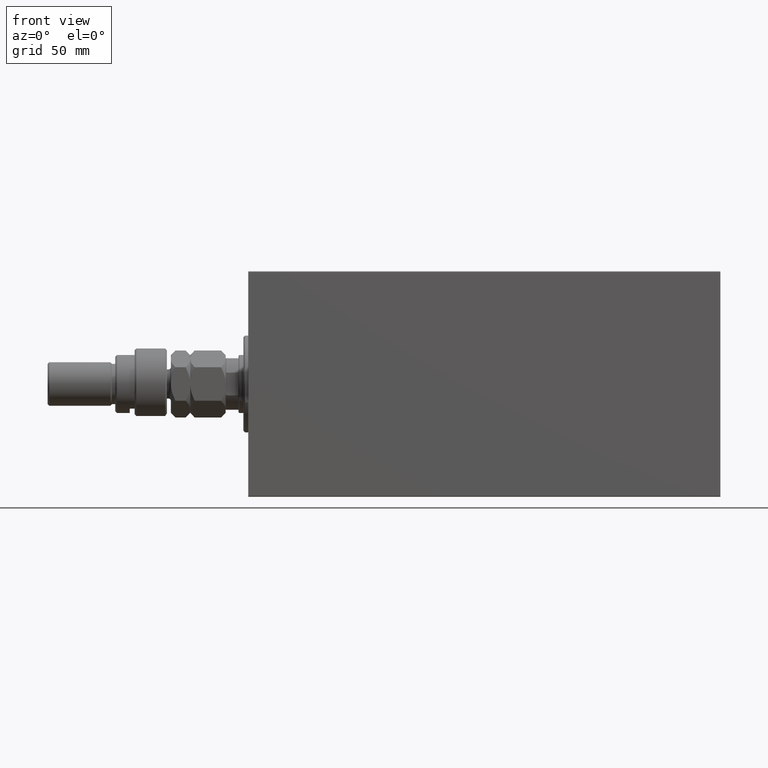
[diagram: clean part render]
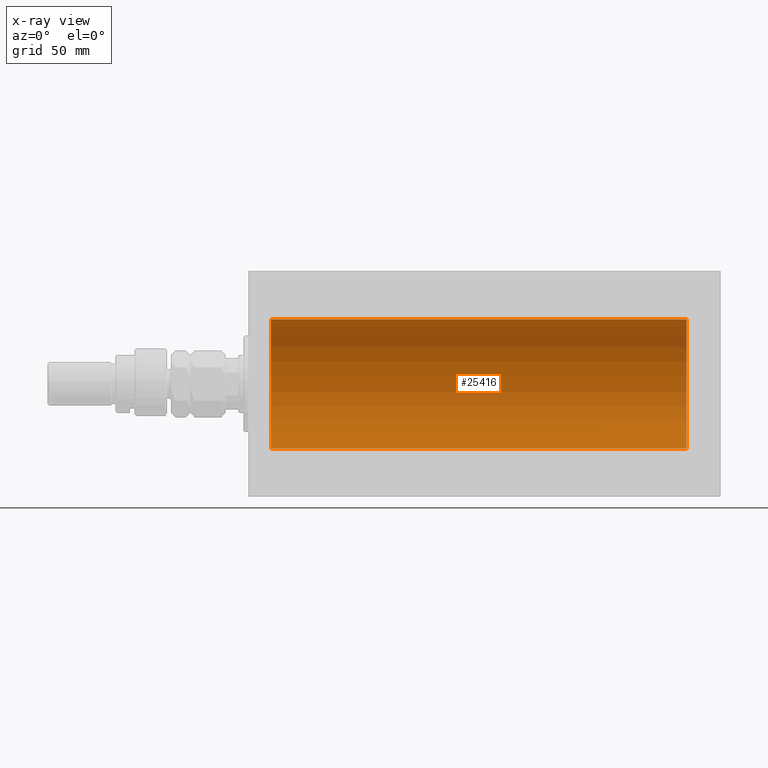
[diagram: x-ray — body ghosted, one internal face saturated and labeled with its STEP entity id]
A machine part, front view, then the same camera in x-ray: the body is ghosted and one INTERNAL B-rep face — a face not visible from any outside direction — is saturated and labeled: STEP entity #25416.
In plain terms, the highlighted cylindrical surface (partial cylindrical patch) has radius 40 mm, axis along (-1, -0, -0).
Its self-contained STEP definition (entity closure, byte-faithful):
#1909 = DIRECTION ( 'NONE',  ( 0.000000000000000000, 0.000000000000000000, 1.000000000000000000 ) ) ;
#2685 = CIRCLE ( 'NONE', #35118, 40.00000000000000000 ) ;
#4065 = ORIENTED_EDGE ( 'NONE', *, *, #46111, .F. ) ;
#5846 = CARTESIAN_POINT ( 'NONE',  ( 272.0000000000000000, 0.000000000000000000, 0.000000000000000000 ) ) ;
#6187 = CARTESIAN_POINT ( 'NONE',  ( 272.0000000000000000, 4.898587196589413026E-15, -40.00000000000000000 ) ) ;
#11423 = AXIS2_PLACEMENT_3D ( 'NONE', #36015, #32237, #25392 ) ;
#14461 = CIRCLE ( 'NONE', #11423, 40.00000000000000000 ) ;
#14714 = EDGE_CURVE ( 'NONE', #28385, #40006, #2685, .T. ) ;
#15296 = LINE ( 'NONE', #29924, #17479 ) ;
#15470 = VECTOR ( 'NONE', #33879, 1000.000000000000000 ) ;
#15491 = LINE ( 'NONE', #16177, #15470 ) ;
#16177 = CARTESIAN_POINT ( 'NONE',  ( 272.0000000000000000, 4.898587196589413026E-15, -40.00000000000000000 ) ) ;
#16220 = EDGE_LOOP ( 'NONE', ( #4065, #31076, #29831, #29776 ) ) ;
#16874 = CARTESIAN_POINT ( 'NONE',  ( 14.00000000000001243, 4.898587196589413026E-15, -40.00000000000000000 ) ) ;
#17479 = VECTOR ( 'NONE', #40549, 1000.000000000000000 ) ;
#19333 = CYLINDRICAL_SURFACE ( 'NONE', #30155, 40.00000000000000000 ) ;
#23786 = FACE_OUTER_BOUND ( 'NONE', #16220, .T. ) ;
#25392 = DIRECTION ( 'NONE',  ( 0.000000000000000000, 0.000000000000000000, 1.000000000000000000 ) ) ;
#25416 = ADVANCED_FACE ( 'NONE', ( #23786 ), #19333, .F. ) ;
#26676 = VERTEX_POINT ( 'NONE', #32111 ) ;
#28385 = VERTEX_POINT ( 'NONE', #39624 ) ;
#29776 = ORIENTED_EDGE ( 'NONE', *, *, #14714, .T. ) ;
#29831 = ORIENTED_EDGE ( 'NONE', *, *, #34788, .T. ) ;
#29924 = CARTESIAN_POINT ( 'NONE',  ( 272.0000000000000000, 0.000000000000000000, 40.00000000000000000 ) ) ;
#30155 = AXIS2_PLACEMENT_3D ( 'NONE', #5846, #37511, #38196 ) ;
#31076 = ORIENTED_EDGE ( 'NONE', *, *, #33747, .F. ) ;
#31134 = VERTEX_POINT ( 'NONE', #6187 ) ;
#32111 = CARTESIAN_POINT ( 'NONE',  ( 272.0000000000000000, 0.000000000000000000, 40.00000000000000000 ) ) ;
#32237 = DIRECTION ( 'NONE',  ( -1.000000000000000000, 0.000000000000000000, 0.000000000000000000 ) ) ;
#33747 = EDGE_CURVE ( 'NONE', #26676, #31134, #14461, .T. ) ;
#33879 = DIRECTION ( 'NONE',  ( -1.000000000000000000, -0.000000000000000000, -0.000000000000000000 ) ) ;
#34788 = EDGE_CURVE ( 'NONE', #26676, #28385, #15296, .T. ) ;
#35118 = AXIS2_PLACEMENT_3D ( 'NONE', #45327, #37565, #1909 ) ;
#36015 = CARTESIAN_POINT ( 'NONE',  ( 272.0000000000000000, 0.000000000000000000, 0.000000000000000000 ) ) ;
#37511 = DIRECTION ( 'NONE',  ( -1.000000000000000000, -0.000000000000000000, -0.000000000000000000 ) ) ;
#37565 = DIRECTION ( 'NONE',  ( -1.000000000000000000, 0.000000000000000000, 0.000000000000000000 ) ) ;
#38196 = DIRECTION ( 'NONE',  ( 0.000000000000000000, 0.000000000000000000, 1.000000000000000000 ) ) ;
#39624 = CARTESIAN_POINT ( 'NONE',  ( 14.00000000000001243, 0.000000000000000000, 40.00000000000000000 ) ) ;
#40006 = VERTEX_POINT ( 'NONE', #16874 ) ;
#40549 = DIRECTION ( 'NONE',  ( -1.000000000000000000, -0.000000000000000000, -0.000000000000000000 ) ) ;
#45327 = CARTESIAN_POINT ( 'NONE',  ( 14.00000000000001243, 0.000000000000000000, 0.000000000000000000 ) ) ;
#46111 = EDGE_CURVE ( 'NONE', #31134, #40006, #15491, .T. ) ;